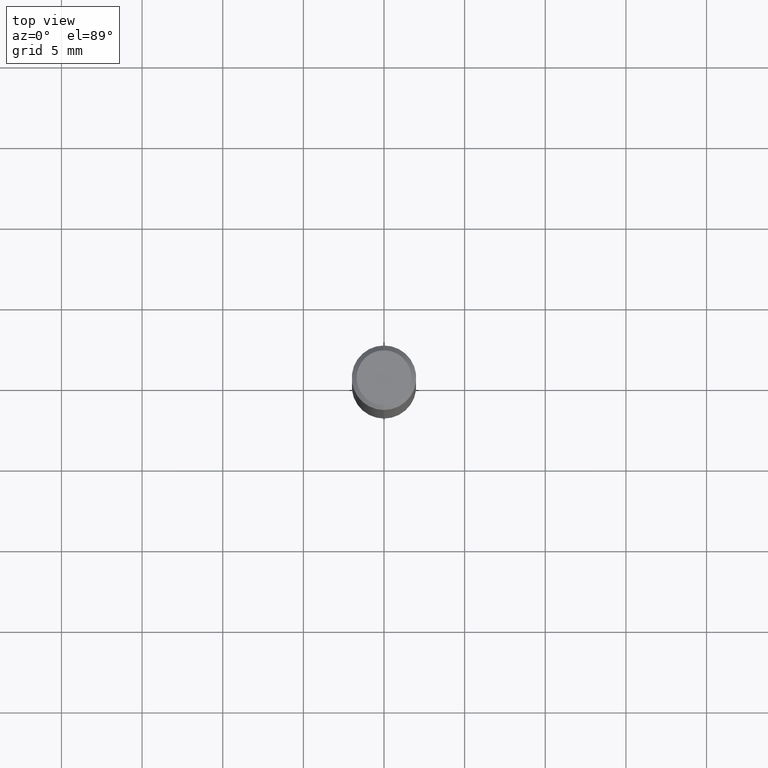
[diagram: clean part render]
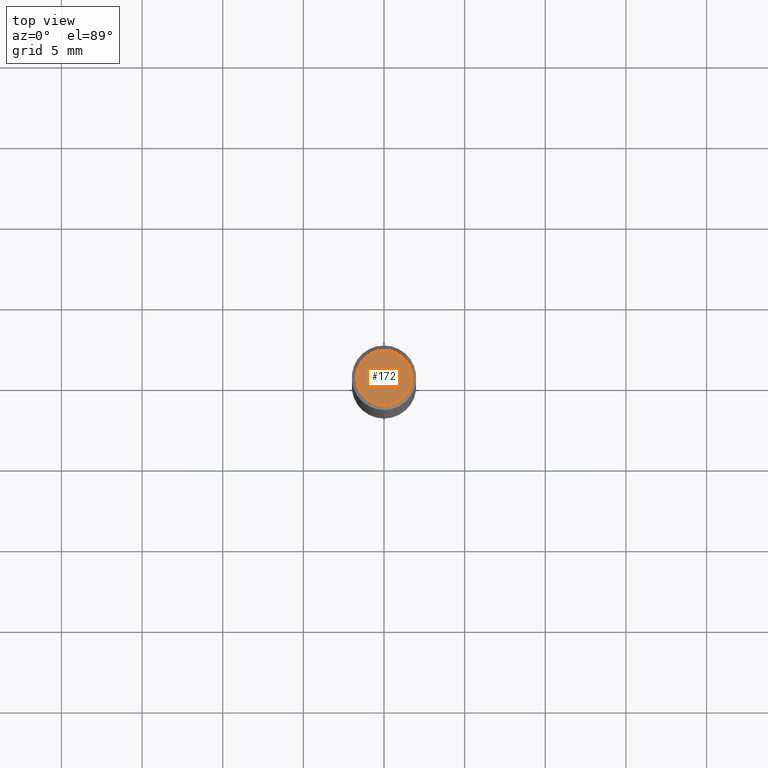
[diagram: same view with one face highlighted and labeled with its STEP entity id]
A machine part, top view. The second image highlights one B-rep face of the part: STEP entity #172.
In plain terms, the highlighted planar face has unit normal (-0, 0, 1).
Its self-contained STEP definition (entity closure, byte-faithful):
#100=VERTEX_POINT('',#241);
#106=VERTEX_POINT('',#247);
#144=EDGE_CURVE('',#106,#100,#291,.T.);
#172=ADVANCED_FACE('',(#321),#322,.T.);
#190=EDGE_CURVE('',#100,#106,#343,.T.);
#241=CARTESIAN_POINT('',(2.08183080149804E-016,-1.7,0.0));
#247=CARTESIAN_POINT('',(0.0,1.7,0.0));
#291=CIRCLE('',#456,1.7);
#321=FACE_OUTER_BOUND('',#496,.T.);
#322=PLANE('',#497);
#343=CIRCLE('',#522,1.7);
#456=AXIS2_PLACEMENT_3D('',#624,#625,#626);
#496=EDGE_LOOP('',(#658,#659));
#497=AXIS2_PLACEMENT_3D('',#660,#661,#662);
#522=AXIS2_PLACEMENT_3D('',#691,#692,#693);
#624=CARTESIAN_POINT('',(0.0,0.0,0.0));
#625=DIRECTION('',(0.0,0.0,-1.0));
#626=DIRECTION('',(0.0,1.0,0.0));
#658=ORIENTED_EDGE('',*,*,#144,.F.);
#659=ORIENTED_EDGE('',*,*,#190,.F.);
#660=CARTESIAN_POINT('',(0.0,0.85,0.0));
#661=DIRECTION('',(-0.0,0.0,1.0));
#662=DIRECTION('',(0.0,-1.0,0.0));
#691=CARTESIAN_POINT('',(0.0,0.0,0.0));
#692=DIRECTION('',(0.0,0.0,-1.0));
#693=DIRECTION('',(0.0,1.0,0.0));